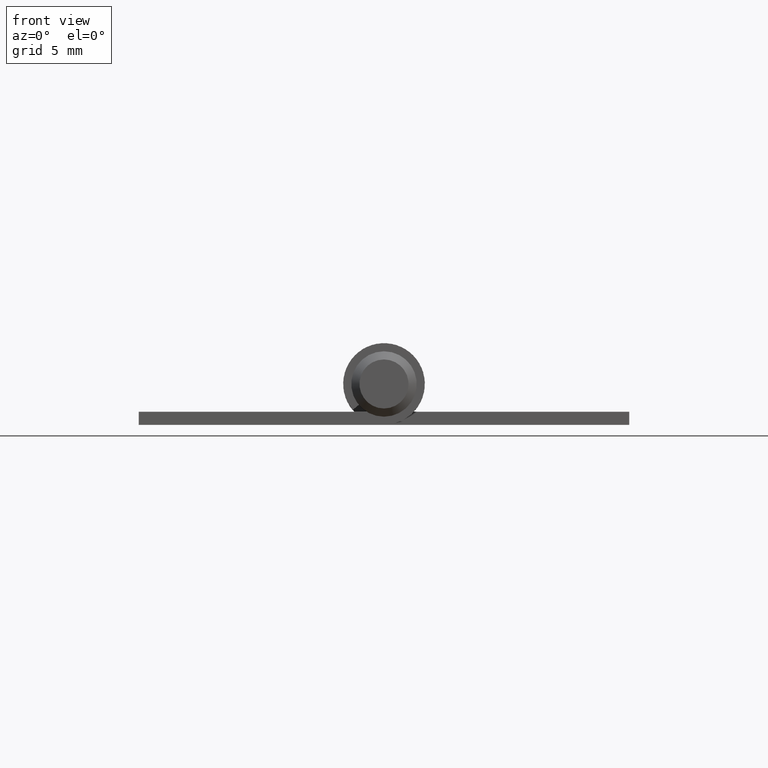
[diagram: clean part render]
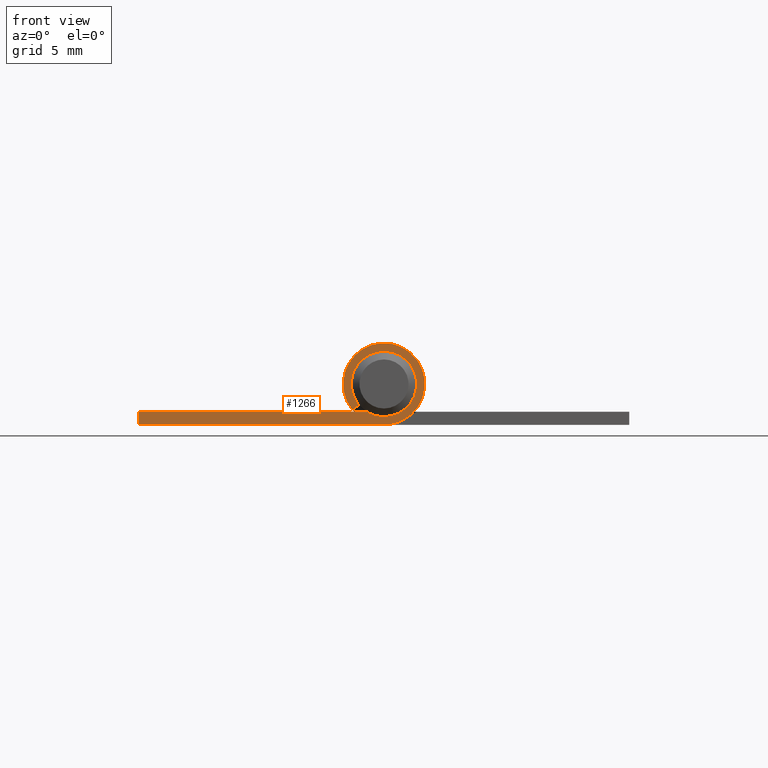
[diagram: same view with one face highlighted and labeled with its STEP entity id]
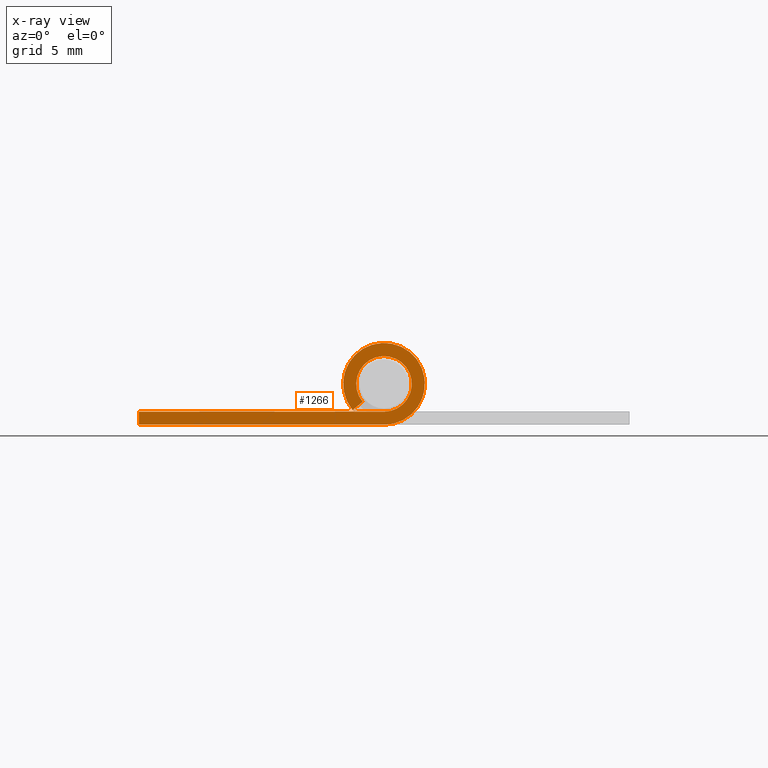
[diagram: x-ray of the same camera — body ghosted, the highlighted face saturated]
A machine part, front view. The second image highlights one B-rep face of the part: STEP entity #1266.
The next image is the same camera in x-ray: the body ghosted, the highlighted face saturated — about 0% of this face is hidden behind the body in this view.
In plain terms, the highlighted planar face has unit normal (0, -1, 0).
Its self-contained STEP definition (entity closure, byte-faithful):
#243 = EDGE_CURVE ( 'NONE', #9085, #2823, #7232, .T. ) ;
#767 = CARTESIAN_POINT ( 'NONE',  ( -2.500000000000000000, -15.00000000000000000, 2.500000000000000000 ) ) ;
#1014 = DIRECTION ( 'NONE',  ( 0.000000000000000000, 1.000000000000000000, -0.000000000000000000 ) ) ;
#1101 = EDGE_CURVE ( 'NONE', #3969, #9085, #1281, .T. ) ;
#1157 = AXIS2_PLACEMENT_3D ( 'NONE', #767, #3007, #1580 ) ;
#1266 = ADVANCED_FACE ( 'NONE', ( #1513 ), #9019, .T. ) ;
#1281 = LINE ( 'NONE', #7229, #4991 ) ;
#1513 = FACE_OUTER_BOUND ( 'NONE', #8785, .T. ) ;
#1580 = DIRECTION ( 'NONE',  ( 0.000000000000000000, 0.000000000000000000, -1.000000000000000000 ) ) ;
#1756 = LINE ( 'NONE', #3518, #8638 ) ;
#1933 = DIRECTION ( 'NONE',  ( 1.000000000000000000, -0.000000000000000000, -1.228762462150238769E-16 ) ) ;
#2151 = DIRECTION ( 'NONE',  ( -0.7683749084919418992, -0.000000000000000000, -0.6400000000000000133 ) ) ;
#2357 = ORIENTED_EDGE ( 'NONE', *, *, #4989, .F. ) ;
#2438 = CARTESIAN_POINT ( 'NONE',  ( -3.806237344436301573, -15.00000000000000000, 1.412000000000000810 ) ) ;
#2741 = AXIS2_PLACEMENT_3D ( 'NONE', #5476, #1014, #6985 ) ;
#2823 = VERTEX_POINT ( 'NONE', #5347 ) ;
#2848 = LINE ( 'NONE', #9663, #9161 ) ;
#3007 = DIRECTION ( 'NONE',  ( -0.000000000000000000, -1.000000000000000000, 0.000000000000000000 ) ) ;
#3518 = CARTESIAN_POINT ( 'NONE',  ( -2.500000000000000000, -15.00000000000000000, 0.8000000000000001554 ) ) ;
#3567 = DIRECTION ( 'NONE',  ( -0.000000000000000000, -0.000000000000000000, 1.000000000000000000 ) ) ;
#3569 = EDGE_CURVE ( 'NONE', #7758, #9196, #8575, .T. ) ;
#3969 = VERTEX_POINT ( 'NONE', #9036 ) ;
#4133 = ORIENTED_EDGE ( 'NONE', *, *, #1101, .F. ) ;
#4520 = DIRECTION ( 'NONE',  ( 0.000000000000000000, -1.000000000000000000, 0.000000000000000000 ) ) ;
#4888 = CARTESIAN_POINT ( 'NONE',  ( -4.420937271229854026, -15.00000000000000000, 0.9000000000000002442 ) ) ;
#4989 = EDGE_CURVE ( 'NONE', #9196, #9387, #2848, .T. ) ;
#4991 = VECTOR ( 'NONE', #7167, 1000.000000000000000 ) ;
#5347 = CARTESIAN_POINT ( 'NONE',  ( -17.49999999999999645, -15.00000000000000000, 0.8000000000000020428 ) ) ;
#5476 = CARTESIAN_POINT ( 'NONE',  ( -2.500000000000000000, -15.00000000000000000, 2.500000000000000000 ) ) ;
#6259 = CARTESIAN_POINT ( 'NONE',  ( -2.500000000000000000, -15.00000000000000000, 0.8000000000000001554 ) ) ;
#6707 = DIRECTION ( 'NONE',  ( 0.000000000000000000, -0.000000000000000000, -1.000000000000000000 ) ) ;
#6737 = CARTESIAN_POINT ( 'NONE',  ( -2.500000000000000000, -15.00000000000000000, 2.500000000000000000 ) ) ;
#6781 = ORIENTED_EDGE ( 'NONE', *, *, #8778, .F. ) ;
#6832 = CARTESIAN_POINT ( 'NONE',  ( -17.49999999999999645, -15.00000000000000000, 1.951563910473907981E-15 ) ) ;
#6985 = DIRECTION ( 'NONE',  ( 0.000000000000000000, 0.000000000000000000, -1.000000000000000000 ) ) ;
#7008 = EDGE_CURVE ( 'NONE', #9387, #3969, #9498, .T. ) ;
#7167 = DIRECTION ( 'NONE',  ( -1.000000000000000000, 0.000000000000000000, 1.228762462150238769E-16 ) ) ;
#7229 = CARTESIAN_POINT ( 'NONE',  ( -2.500000000000000000, -15.00000000000000000, 1.084202172485504434E-16 ) ) ;
#7232 = LINE ( 'NONE', #7243, #9476 ) ;
#7243 = CARTESIAN_POINT ( 'NONE',  ( -17.49999999999999645, -15.00000000000000000, 0.8000000000000020428 ) ) ;
#7729 = ORIENTED_EDGE ( 'NONE', *, *, #7008, .F. ) ;
#7758 = VERTEX_POINT ( 'NONE', #6259 ) ;
#8260 = ORIENTED_EDGE ( 'NONE', *, *, #3569, .F. ) ;
#8575 = CIRCLE ( 'NONE', #1157, 1.699999999999999956 ) ;
#8582 = AXIS2_PLACEMENT_3D ( 'NONE', #6737, #4520, #6707 ) ;
#8638 = VECTOR ( 'NONE', #1933, 1000.000000000000000 ) ;
#8778 = EDGE_CURVE ( 'NONE', #2823, #7758, #1756, .T. ) ;
#8785 = EDGE_LOOP ( 'NONE', ( #7729, #2357, #8260, #6781, #9009, #4133 ) ) ;
#9009 = ORIENTED_EDGE ( 'NONE', *, *, #243, .F. ) ;
#9019 = PLANE ( 'NONE',  #8582 ) ;
#9036 = CARTESIAN_POINT ( 'NONE',  ( -2.500000000000000000, -15.00000000000000000, 1.084202172485504434E-16 ) ) ;
#9085 = VERTEX_POINT ( 'NONE', #6832 ) ;
#9161 = VECTOR ( 'NONE', #2151, 1000.000000000000114 ) ;
#9196 = VERTEX_POINT ( 'NONE', #2438 ) ;
#9387 = VERTEX_POINT ( 'NONE', #4888 ) ;
#9476 = VECTOR ( 'NONE', #3567, 1000.000000000000000 ) ;
#9498 = CIRCLE ( 'NONE', #2741, 2.499999999999999556 ) ;
#9663 = CARTESIAN_POINT ( 'NONE',  ( -4.420937271229854026, -15.00000000000000000, 0.9000000000000002442 ) ) ;